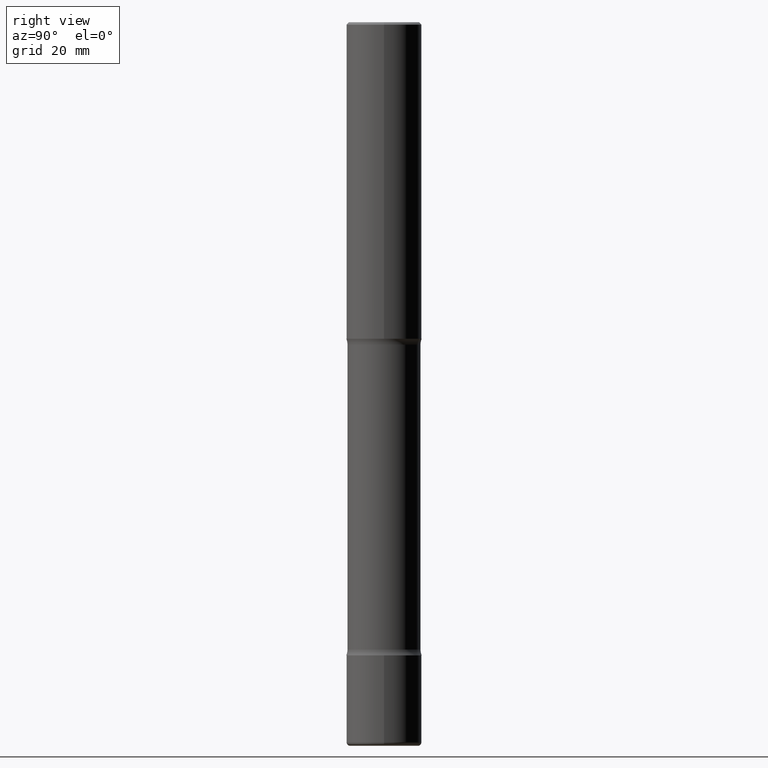
[diagram: clean part render]
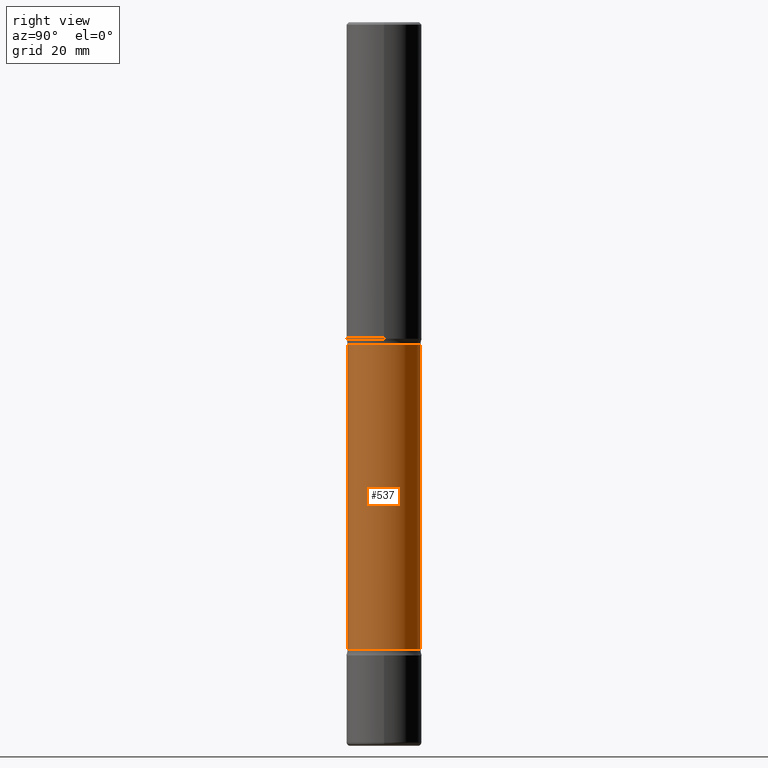
[diagram: same view with one face highlighted and labeled with its STEP entity id]
A machine part, right view. The second image highlights one B-rep face of the part: STEP entity #537.
In plain terms, the highlighted cylindrical surface (edge-blend (fillet) strip) has radius 7.6835 mm, axis along (0, -0, -1).
Its self-contained STEP definition (entity closure, byte-faithful):
#2 = CARTESIAN_POINT ( 'NONE',  ( -2.075300644325741948E-15, -0.3025000000000210298, -5.999999999999999112 ) ) ;
#29 = VERTEX_POINT ( 'NONE', #32 ) ;
#32 = CARTESIAN_POINT ( 'NONE',  ( 2.112346210000159735E-15, 0.3024999999999904987, -2.673989794855665902 ) ) ;
#37 = DIRECTION ( 'NONE',  ( 2.668026719628616344E-29, -3.172765739582314775E-15, -1.000000000000000000 ) ) ;
#40 = AXIS2_PLACEMENT_3D ( 'NONE', #294, #117, #146 ) ;
#58 = ORIENTED_EDGE ( 'NONE', *, *, #466, .F. ) ;
#70 = CARTESIAN_POINT ( 'NONE',  ( -2.109603134314618744E-15, -0.3025000000000181433, -5.201010205144335430 ) ) ;
#99 = EDGE_LOOP ( 'NONE', ( #134, #364, #58, #133 ) ) ;
#104 = CARTESIAN_POINT ( 'NONE',  ( 1.270800515080793348E-28, -1.817484388621929912E-14, -5.201010205144336318 ) ) ;
#106 = EDGE_CURVE ( 'NONE', #280, #326, #130, .T. ) ;
#111 = CARTESIAN_POINT ( 'NONE',  ( 2.112346210000246116E-15, 0.3024999999999796185, -6.000000000000001776 ) ) ;
#117 = DIRECTION ( 'NONE',  ( 2.668026719628616344E-29, -3.172765739582314775E-15, -1.000000000000000000 ) ) ;
#119 = CARTESIAN_POINT ( 'NONE',  ( 1.483973127219342911E-28, -2.070985133361325197E-14, -6.000000000000000888 ) ) ;
#120 = VECTOR ( 'NONE', #524, 39.37007874015748143 ) ;
#130 = LINE ( 'NONE', #2, #120 ) ;
#132 = CARTESIAN_POINT ( 'NONE',  ( -2.109603134314693686E-15, -0.3025000000000108158, -2.673989794855663682 ) ) ;
#133 = ORIENTED_EDGE ( 'NONE', *, *, #404, .F. ) ;
#134 = ORIENTED_EDGE ( 'NONE', *, *, #308, .T. ) ;
#146 = DIRECTION ( 'NONE',  ( 6.982962677686266711E-15, 1.000000000000000000, -3.612360983357695736E-15 ) ) ;
#184 = AXIS2_PLACEMENT_3D ( 'NONE', #119, #37, #212 ) ;
#192 = VERTEX_POINT ( 'NONE', #215 ) ;
#212 = DIRECTION ( 'NONE',  ( 6.982962677686265922E-15, 1.000000000000000000, -3.612360983357699681E-15 ) ) ;
#215 = CARTESIAN_POINT ( 'NONE',  ( 2.112346210000222450E-15, 0.3024999999999818390, -5.201010205144337206 ) ) ;
#239 = CIRCLE ( 'NONE', #40, 0.3025000000000006573 ) ;
#280 = VERTEX_POINT ( 'NONE', #132 ) ;
#285 = DIRECTION ( 'NONE',  ( 2.668026719628616344E-29, -3.172765739582314775E-15, -1.000000000000000000 ) ) ;
#294 = CARTESIAN_POINT ( 'NONE',  ( 5.965847175110887226E-29, -1.015720010523015908E-14, -2.673989794855665014 ) ) ;
#307 = VECTOR ( 'NONE', #414, 39.37007874015748143 ) ;
#308 = EDGE_CURVE ( 'NONE', #29, #280, #239, .T. ) ;
#326 = VERTEX_POINT ( 'NONE', #70 ) ;
#364 = ORIENTED_EDGE ( 'NONE', *, *, #106, .T. ) ;
#371 = CIRCLE ( 'NONE', #402, 0.3024999999999999911 ) ;
#402 = AXIS2_PLACEMENT_3D ( 'NONE', #104, #285, #447 ) ;
#404 = EDGE_CURVE ( 'NONE', #29, #192, #499, .T. ) ;
#414 = DIRECTION ( 'NONE',  ( 2.668026719628616344E-29, -3.172765739582314775E-15, -1.000000000000000000 ) ) ;
#447 = DIRECTION ( 'NONE',  ( 6.982962677686265922E-15, 1.000000000000000000, -3.612360983357703625E-15 ) ) ;
#464 = FACE_OUTER_BOUND ( 'NONE', #99, .T. ) ;
#466 = EDGE_CURVE ( 'NONE', #192, #326, #371, .T. ) ;
#499 = LINE ( 'NONE', #111, #307 ) ;
#515 = CYLINDRICAL_SURFACE ( 'NONE', #184, 0.3025000000000003242 ) ;
#524 = DIRECTION ( 'NONE',  ( 2.668026719628616344E-29, -3.172765739582314775E-15, -1.000000000000000000 ) ) ;
#537 = ADVANCED_FACE ( 'NONE', ( #464 ), #515, .T. ) ;